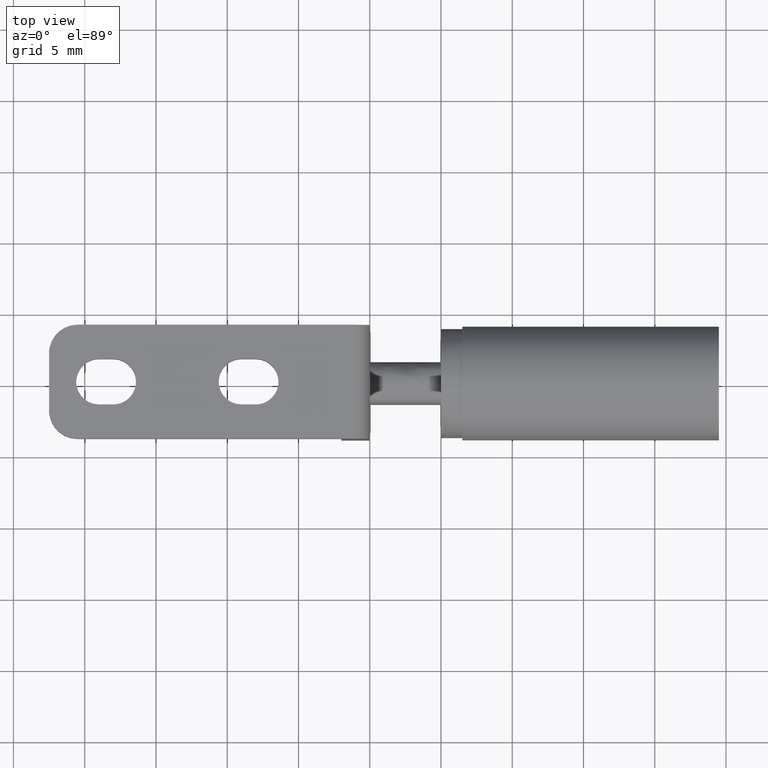
[diagram: clean part render]
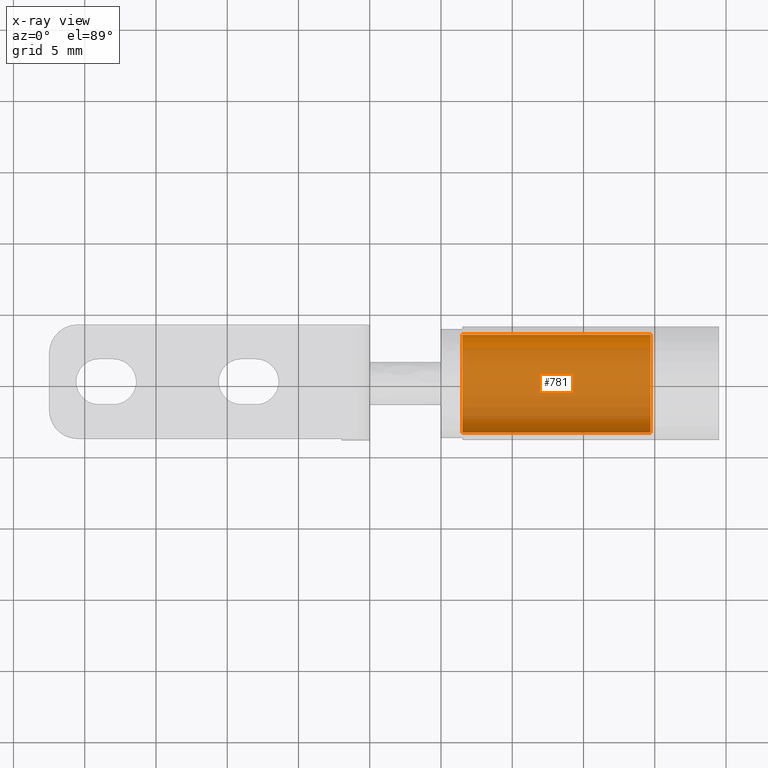
[diagram: x-ray — body ghosted, one internal face saturated and labeled with its STEP entity id]
A machine part, top view, then the same camera in x-ray: the body is ghosted and one INTERNAL B-rep face — a face not visible from any outside direction — is saturated and labeled: STEP entity #781.
In plain terms, the highlighted face is a freeform B-spline surface patch.
Its self-contained STEP definition (entity closure, byte-faithful):
#679=CARTESIAN_POINT('',(20.030000000000012,3.425882865954649,0.407218109565817));
#680=CARTESIAN_POINT('',(20.030000000000008,3.437537273297690,0.309170813801023));
#681=CARTESIAN_POINT('',(20.030000000000008,3.443565054555440,0.210617461395257));
#682=CARTESIAN_POINT('',(20.030000000000001,3.654182515950696,-3.232947593160184));
#683=CARTESIAN_POINT('',(20.030000000000008,0.210617461395257,-3.443565054555440));
#684=CARTESIAN_POINT('',(20.030000000000001,-3.232947593160184,-3.654182515950696));
#685=CARTESIAN_POINT('',(20.030000000000008,-3.443565054555440,-0.210617461395257));
#686=CARTESIAN_POINT('',(6.161750000000001,3.425882865954649,0.407218109565817));
#687=CARTESIAN_POINT('',(6.161750000000000,3.437537273297690,0.309170813801023));
#688=CARTESIAN_POINT('',(6.161750000000000,3.443565054555440,0.210617461395257));
#689=CARTESIAN_POINT('',(6.161750000000000,3.654182515950696,-3.232947593160184));
#690=CARTESIAN_POINT('',(6.161750000000000,0.210617461395257,-3.443565054555440));
#691=CARTESIAN_POINT('',(6.161750000000000,-3.232947593160184,-3.654182515950696));
#692=CARTESIAN_POINT('',(6.161750000000000,-3.443565054555440,-0.210617461395257));
#700=(BOUNDED_SURFACE()B_SPLINE_SURFACE(2,1,((#679,#686),(#680,#687),(#681,#688),(#682,#689),(#683,#690),(#684,#691),(#685,#692)),.UNSPECIFIED.,.F.,.F.,.U.)B_SPLINE_SURFACE_WITH_KNOTS((3,2,2,3),(2,2),(0.0,0.228645886429949,5.944793047178659,11.660940207927370),(0.0,13.868250000000010),.UNSPECIFIED.)GEOMETRIC_REPRESENTATION_ITEM()RATIONAL_B_SPLINE_SURFACE(((0.977505800795127,0.977505800795127),(0.988284271247462,0.988284271247462),(1.0,1.0),(0.707106781186548,0.707106781186548),(1.0,1.0),(0.707106781186548,0.707106781186548),(1.0,1.0)))REPRESENTATION_ITEM('')SURFACE());
#701=CARTESIAN_POINT('',(19.699999999999999,3.425882865949250,0.407218109611242));
#702=VERTEX_POINT('',#701);
#703=CARTESIAN_POINT('',(19.699999999999999,0.0,-3.450000000000000));
#704=VERTEX_POINT('',#703);
#705=CARTESIAN_POINT('',(19.700000000000003,3.425882865949250,0.407218109611242));
#706=CARTESIAN_POINT('',(19.700000000000003,3.449999999999999,0.204323212844995));
#707=CARTESIAN_POINT('',(19.699999999999999,3.450000000000000,0.0));
#708=CARTESIAN_POINT('',(19.700000000000006,3.450000000000000,-3.450000000000000));
#709=CARTESIAN_POINT('',(19.699999999999999,0.0,-3.450000000000000));
#717=(BOUNDED_CURVE()B_SPLINE_CURVE(2,(#705,#706,#707,#708,#709),.UNSPECIFIED.,.F.,.U.)B_SPLINE_CURVE_WITH_KNOTS((3,2,3),(0.229562473511162,0.250000000000000,0.500000000000000),.UNSPECIFIED.)CURVE()GEOMETRIC_REPRESENTATION_ITEM()RATIONAL_B_SPLINE_CURVE((0.956026754179101,0.976055948328397,1.0,0.707106781186548,1.0))REPRESENTATION_ITEM(''));
#718=EDGE_CURVE('',#702,#704,#717,.T.);
#719=ORIENTED_EDGE('',*,*,#718,.T.);
#720=CARTESIAN_POINT('',(19.699999999999999,-3.443565054550863,-0.210617461470105));
#721=VERTEX_POINT('',#720);
#722=CARTESIAN_POINT('',(19.699999999999999,0.0,-3.450000000000000));
#723=CARTESIAN_POINT('',(19.700000000000003,-3.245435930683280,-3.450000000000001));
#724=CARTESIAN_POINT('',(19.699999999999999,-3.443565054550863,-0.210617461470105));
#732=(BOUNDED_CURVE()B_SPLINE_CURVE(2,(#722,#723,#724),.UNSPECIFIED.,.F.,.U.)B_SPLINE_CURVE_WITH_KNOTS((3,3),(0.500000000000000,0.739332962234466),.UNSPECIFIED.)CURVE()GEOMETRIC_REPRESENTATION_ITEM()RATIONAL_B_SPLINE_CURVE((1.0,0.719603993291955,0.976072041657124))REPRESENTATION_ITEM(''));
#733=EDGE_CURVE('',#704,#721,#732,.T.);
#734=ORIENTED_EDGE('',*,*,#733,.T.);
#735=CARTESIAN_POINT('',(6.500000000000000,-3.443565054550863,-0.210617461470106));
#736=VERTEX_POINT('',#735);
#737=CARTESIAN_POINT('',(19.699999999999999,-3.443565054550863,-0.210617461470105));
#738=CARTESIAN_POINT('',(6.500000000000000,-3.443565054550863,-0.210617461470106));
#739=QUASI_UNIFORM_CURVE('',1,(#737,#738),.UNSPECIFIED.,.F.,.U.);
#740=EDGE_CURVE('',#721,#736,#739,.T.);
#741=ORIENTED_EDGE('',*,*,#740,.T.);
#742=CARTESIAN_POINT('',(6.500000000000000,0.0,-3.450000000000000));
#743=VERTEX_POINT('',#742);
#744=CARTESIAN_POINT('',(6.500000000000000,0.0,-3.450000000000000));
#745=CARTESIAN_POINT('',(6.500000000000001,-3.245435930683280,-3.450000000000001));
#746=CARTESIAN_POINT('',(6.500000000000000,-3.443565054550863,-0.210617461470106));
#754=(BOUNDED_CURVE()B_SPLINE_CURVE(2,(#744,#745,#746),.UNSPECIFIED.,.F.,.U.)B_SPLINE_CURVE_WITH_KNOTS((3,3),(0.500000000000000,0.739332962234466),.UNSPECIFIED.)CURVE()GEOMETRIC_REPRESENTATION_ITEM()RATIONAL_B_SPLINE_CURVE((1.0,0.719603993291955,0.976072041657124))REPRESENTATION_ITEM(''));
#755=EDGE_CURVE('',#743,#736,#754,.T.);
#756=ORIENTED_EDGE('',*,*,#755,.F.);
#757=CARTESIAN_POINT('',(6.500000000000000,3.425882865949250,0.407218109611242));
#758=VERTEX_POINT('',#757);
#759=CARTESIAN_POINT('',(6.500000000000000,3.425882865949250,0.407218109611242));
#760=CARTESIAN_POINT('',(6.500000000000001,3.449999999999999,0.204323212844995));
#761=CARTESIAN_POINT('',(6.500000000000000,3.450000000000000,0.0));
#762=CARTESIAN_POINT('',(6.500000000000001,3.450000000000000,-3.450000000000000));
#763=CARTESIAN_POINT('',(6.500000000000000,0.0,-3.450000000000000));
#771=(BOUNDED_CURVE()B_SPLINE_CURVE(2,(#759,#760,#761,#762,#763),.UNSPECIFIED.,.F.,.U.)B_SPLINE_CURVE_WITH_KNOTS((3,2,3),(0.229562473511162,0.250000000000000,0.500000000000000),.UNSPECIFIED.)CURVE()GEOMETRIC_REPRESENTATION_ITEM()RATIONAL_B_SPLINE_CURVE((0.956026754179101,0.976055948328397,1.0,0.707106781186548,1.0))REPRESENTATION_ITEM(''));
#772=EDGE_CURVE('',#758,#743,#771,.T.);
#773=ORIENTED_EDGE('',*,*,#772,.F.);
#774=CARTESIAN_POINT('',(19.699999999999999,3.425882865949250,0.407218109611242));
#775=CARTESIAN_POINT('',(6.500000000000000,3.425882865949250,0.407218109611242));
#776=QUASI_UNIFORM_CURVE('',1,(#774,#775),.UNSPECIFIED.,.F.,.U.);
#777=EDGE_CURVE('',#702,#758,#776,.T.);
#778=ORIENTED_EDGE('',*,*,#777,.F.);
#779=EDGE_LOOP('',(#719,#734,#741,#756,#773,#778));
#780=FACE_OUTER_BOUND('',#779,.T.);
#781=ADVANCED_FACE('',(#780),#700,.T.);